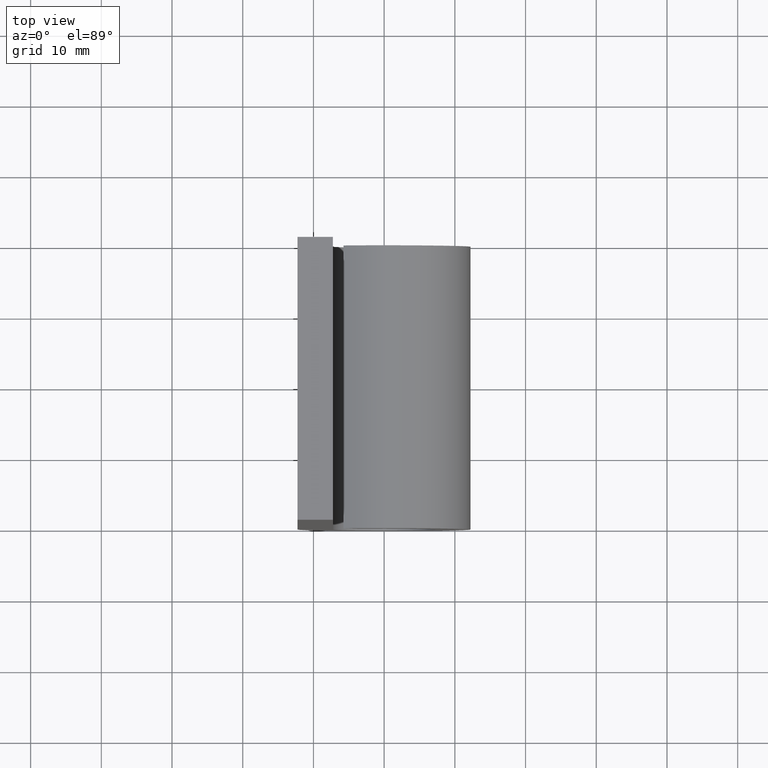
[diagram: clean part render]
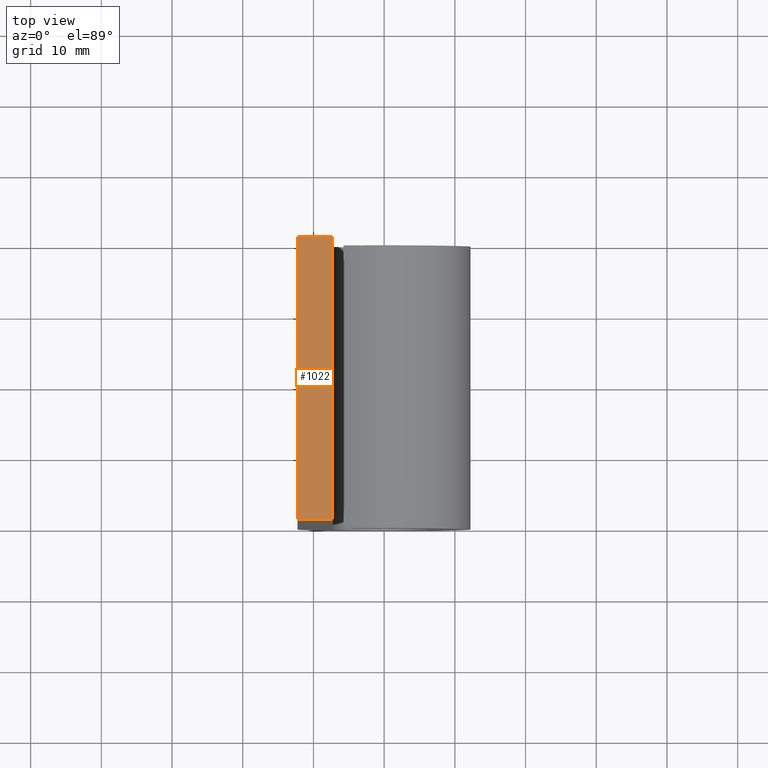
[diagram: same view with one face highlighted and labeled with its STEP entity id]
A machine part, top view. The second image highlights one B-rep face of the part: STEP entity #1022.
In plain terms, the highlighted planar face has unit normal (0, 0, -1).
Its self-contained STEP definition (entity closure, byte-faithful):
#21 = ORIENTED_EDGE ( 'NONE', *, *, #4614, .T. ) ;
#677 = DIRECTION ( 'NONE',  ( -1.000000000000000000, 0.000000000000000000, -0.000000000000000000 ) ) ;
#1022 = ADVANCED_FACE ( 'NONE', ( #3052 ), #6799, .F. ) ;
#3052 = FACE_OUTER_BOUND ( 'NONE', #10924, .T. ) ;
#3329 = LINE ( 'NONE', #7665, #12253 ) ;
#4614 = EDGE_CURVE ( 'NONE', #12380, #5624, #10053, .T. ) ;
#4785 = CARTESIAN_POINT ( 'NONE',  ( -7.250000000000000000, -20.00000000000000000, 80.00000000000000000 ) ) ;
#5094 = LINE ( 'NONE', #8123, #7007 ) ;
#5501 = CARTESIAN_POINT ( 'NONE',  ( -12.25000000000000000, -20.00000000000000000, 80.00000000000000000 ) ) ;
#5624 = VERTEX_POINT ( 'NONE', #4785 ) ;
#6152 = VERTEX_POINT ( 'NONE', #10425 ) ;
#6384 = EDGE_CURVE ( 'NONE', #6152, #11512, #5094, .T. ) ;
#6799 = PLANE ( 'NONE',  #11773 ) ;
#6831 = ORIENTED_EDGE ( 'NONE', *, *, #7209, .F. ) ;
#7007 = VECTOR ( 'NONE', #8230, 1000.000000000000000 ) ;
#7209 = EDGE_CURVE ( 'NONE', #11512, #5624, #3329, .T. ) ;
#7665 = CARTESIAN_POINT ( 'NONE',  ( -7.250000000000000000, 20.00000000000000000, 80.00000000000000000 ) ) ;
#8123 = CARTESIAN_POINT ( 'NONE',  ( -12.25000000000000000, 20.00000000000000000, 80.00000000000000000 ) ) ;
#8230 = DIRECTION ( 'NONE',  ( 1.000000000000000000, 0.000000000000000000, 0.000000000000000000 ) ) ;
#8390 = ORIENTED_EDGE ( 'NONE', *, *, #11405, .T. ) ;
#8782 = ORIENTED_EDGE ( 'NONE', *, *, #6384, .F. ) ;
#8830 = CARTESIAN_POINT ( 'NONE',  ( -12.25000000000000000, 20.00000000000000000, 80.00000000000000000 ) ) ;
#9508 = VECTOR ( 'NONE', #9989, 1000.000000000000000 ) ;
#9989 = DIRECTION ( 'NONE',  ( -0.000000000000000000, -1.000000000000000000, -0.000000000000000000 ) ) ;
#10053 = LINE ( 'NONE', #5501, #12621 ) ;
#10422 = DIRECTION ( 'NONE',  ( 1.000000000000000000, 0.000000000000000000, 0.000000000000000000 ) ) ;
#10425 = CARTESIAN_POINT ( 'NONE',  ( -12.25000000000000000, 20.00000000000000000, 80.00000000000000000 ) ) ;
#10618 = DIRECTION ( 'NONE',  ( -0.000000000000000000, -1.000000000000000000, -0.000000000000000000 ) ) ;
#10733 = DIRECTION ( 'NONE',  ( 0.000000000000000000, 0.000000000000000000, -1.000000000000000000 ) ) ;
#10871 = CARTESIAN_POINT ( 'NONE',  ( -12.25000000000000000, 20.00000000000000000, 80.00000000000000000 ) ) ;
#10924 = EDGE_LOOP ( 'NONE', ( #21, #6831, #8782, #8390 ) ) ;
#11405 = EDGE_CURVE ( 'NONE', #6152, #12380, #12540, .T. ) ;
#11471 = CARTESIAN_POINT ( 'NONE',  ( -12.25000000000000000, -20.00000000000000000, 80.00000000000000000 ) ) ;
#11512 = VERTEX_POINT ( 'NONE', #12347 ) ;
#11773 = AXIS2_PLACEMENT_3D ( 'NONE', #8830, #10733, #677 ) ;
#12253 = VECTOR ( 'NONE', #10618, 1000.000000000000000 ) ;
#12347 = CARTESIAN_POINT ( 'NONE',  ( -7.250000000000000000, 20.00000000000000000, 80.00000000000000000 ) ) ;
#12380 = VERTEX_POINT ( 'NONE', #11471 ) ;
#12540 = LINE ( 'NONE', #10871, #9508 ) ;
#12621 = VECTOR ( 'NONE', #10422, 1000.000000000000000 ) ;